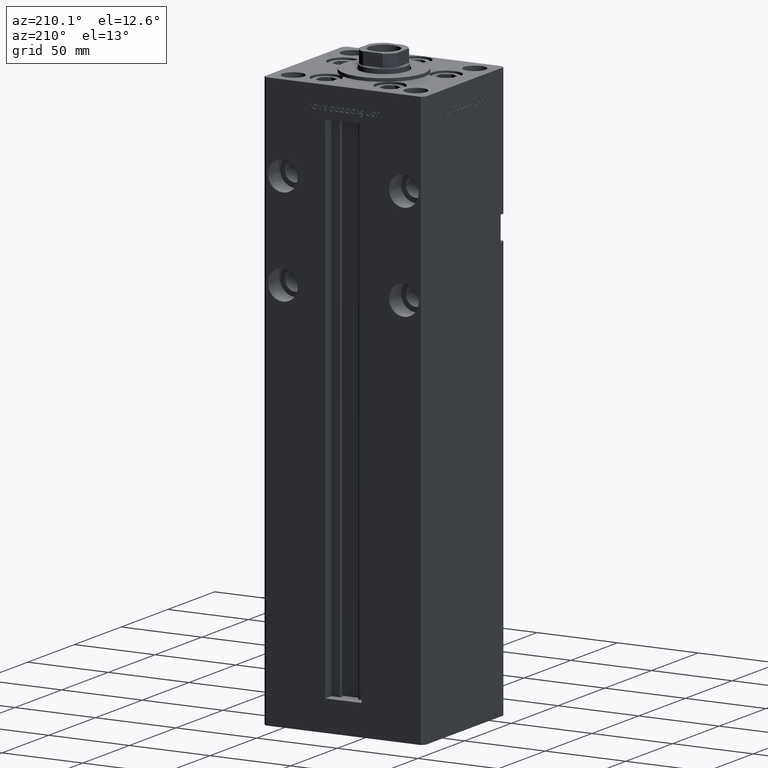
[diagram: clean part render]
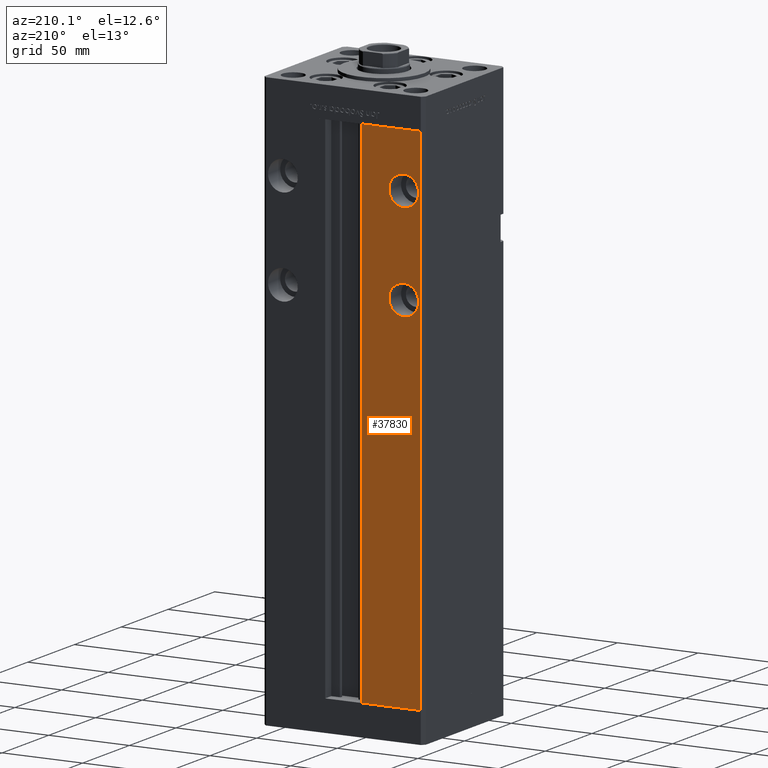
[diagram: same view with one face highlighted and labeled with its STEP entity id]
A machine part, auxiliary view. The second image highlights one B-rep face of the part: STEP entity #37830.
In plain terms, the highlighted planar face has unit normal (0, -1, 0).
Its self-contained STEP definition (entity closure, byte-faithful):
#35 = EDGE_CURVE ( 'NONE', #13581, #28495, #152, .T. ) ;
#152 = LINE ( 'NONE', #4167, #5485 ) ;
#1673 = DIRECTION ( 'NONE',  ( 0.000000000000000000, 1.000000000000000000, 0.000000000000000000 ) ) ;
#2047 = CARTESIAN_POINT ( 'NONE',  ( -37.50000000000000000, 43.50000000000000000, 233.7500000000000000 ) ) ;
#2129 = VECTOR ( 'NONE', #27618, 1000.000000000000000 ) ;
#2725 = PLANE ( 'NONE',  #51195 ) ;
#3520 = EDGE_CURVE ( 'NONE', #13581, #34825, #42387, .T. ) ;
#4167 = CARTESIAN_POINT ( 'NONE',  ( -11.24999999999999645, 43.50000000000000000, 0.000000000000000000 ) ) ;
#4814 = CARTESIAN_POINT ( 'NONE',  ( -48.00000000000000711, 43.50000000000000000, 318.5000000000000000 ) ) ;
#5485 = VECTOR ( 'NONE', #24876, 1000.000000000000000 ) ;
#5971 = CARTESIAN_POINT ( 'NONE',  ( -37.50000000000000000, 43.50000000000000000, 224.5000000000000000 ) ) ;
#6041 = CARTESIAN_POINT ( 'NONE',  ( -37.50000000000000000, 43.50000000000000000, 224.5000000000000000 ) ) ;
#6107 = EDGE_CURVE ( 'NONE', #11502, #34825, #52340, .T. ) ;
#6461 = CARTESIAN_POINT ( 'NONE',  ( -48.00000000000000711, 43.50000000000000000, 0.000000000000000000 ) ) ;
#8050 = VECTOR ( 'NONE', #21992, 1000.000000000000000 ) ;
#8572 = DIRECTION ( 'NONE',  ( 0.000000000000000000, -1.000000000000000000, 0.000000000000000000 ) ) ;
#9663 = EDGE_CURVE ( 'NONE', #16000, #47700, #51981, .T. ) ;
#9811 = CARTESIAN_POINT ( 'NONE',  ( -37.50000000000000000, 43.50000000000000000, 215.2500000000000000 ) ) ;
#10835 = AXIS2_PLACEMENT_3D ( 'NONE', #5971, #1673, #39272 ) ;
#11502 = VERTEX_POINT ( 'NONE', #4814 ) ;
#11730 = VERTEX_POINT ( 'NONE', #50382 ) ;
#13415 = CARTESIAN_POINT ( 'NONE',  ( -37.50000000000000000, 43.50000000000000000, 284.5000000000000000 ) ) ;
#13581 = VERTEX_POINT ( 'NONE', #29894 ) ;
#14197 = EDGE_CURVE ( 'NONE', #47700, #16000, #26381, .T. ) ;
#14335 = AXIS2_PLACEMENT_3D ( 'NONE', #13415, #16641, #33287 ) ;
#14380 = DIRECTION ( 'NONE',  ( 0.000000000000000000, 1.000000000000000000, 0.000000000000000000 ) ) ;
#14939 = DIRECTION ( 'NONE',  ( 0.000000000000000000, 1.000000000000000000, -0.000000000000000000 ) ) ;
#16000 = VERTEX_POINT ( 'NONE', #9811 ) ;
#16632 = FACE_BOUND ( 'NONE', #23539, .T. ) ;
#16641 = DIRECTION ( 'NONE',  ( 0.000000000000000000, 1.000000000000000000, -0.000000000000000000 ) ) ;
#16816 = ORIENTED_EDGE ( 'NONE', *, *, #3520, .T. ) ;
#17071 = VECTOR ( 'NONE', #30243, 1000.000000000000000 ) ;
#17243 = CARTESIAN_POINT ( 'NONE',  ( -37.50000000000000000, 43.50000000000000000, 275.2500000000000000 ) ) ;
#17535 = AXIS2_PLACEMENT_3D ( 'NONE', #22466, #14939, #21951 ) ;
#18402 = ORIENTED_EDGE ( 'NONE', *, *, #6107, .F. ) ;
#20665 = FACE_BOUND ( 'NONE', #52887, .T. ) ;
#21951 = DIRECTION ( 'NONE',  ( 0.000000000000000000, 0.000000000000000000, -1.000000000000000000 ) ) ;
#21992 = DIRECTION ( 'NONE',  ( -1.000000000000000000, 0.000000000000000000, 0.000000000000000000 ) ) ;
#22466 = CARTESIAN_POINT ( 'NONE',  ( -37.50000000000000000, 43.50000000000000000, 284.5000000000000000 ) ) ;
#22981 = AXIS2_PLACEMENT_3D ( 'NONE', #6041, #14380, #26467 ) ;
#23539 = EDGE_LOOP ( 'NONE', ( #35625, #29285 ) ) ;
#23775 = CIRCLE ( 'NONE', #14335, 9.249999999999980460 ) ;
#24319 = EDGE_LOOP ( 'NONE', ( #43641, #33858, #16816, #18402 ) ) ;
#24876 = DIRECTION ( 'NONE',  ( -0.000000000000000000, -0.000000000000000000, 1.000000000000000000 ) ) ;
#24950 = DIRECTION ( 'NONE',  ( 0.000000000000000000, -0.000000000000000000, -1.000000000000000000 ) ) ;
#26381 = CIRCLE ( 'NONE', #22981, 9.250000000000008882 ) ;
#26467 = DIRECTION ( 'NONE',  ( 0.000000000000000000, 0.000000000000000000, 1.000000000000000000 ) ) ;
#27521 = EDGE_CURVE ( 'NONE', #11730, #29311, #40661, .T. ) ;
#27618 = DIRECTION ( 'NONE',  ( -0.000000000000000000, -0.000000000000000000, -1.000000000000000000 ) ) ;
#28495 = VERTEX_POINT ( 'NONE', #49853 ) ;
#29285 = ORIENTED_EDGE ( 'NONE', *, *, #9663, .F. ) ;
#29311 = VERTEX_POINT ( 'NONE', #17243 ) ;
#29894 = CARTESIAN_POINT ( 'NONE',  ( -11.24999999999999645, 43.50000000000000000, 0.000000000000000000 ) ) ;
#30243 = DIRECTION ( 'NONE',  ( 1.000000000000000000, 0.000000000000000000, 0.000000000000000000 ) ) ;
#33004 = FACE_OUTER_BOUND ( 'NONE', #24319, .T. ) ;
#33287 = DIRECTION ( 'NONE',  ( 0.000000000000000000, 0.000000000000000000, -1.000000000000000000 ) ) ;
#33858 = ORIENTED_EDGE ( 'NONE', *, *, #35, .F. ) ;
#34798 = LINE ( 'NONE', #42339, #17071 ) ;
#34825 = VERTEX_POINT ( 'NONE', #6461 ) ;
#35625 = ORIENTED_EDGE ( 'NONE', *, *, #14197, .F. ) ;
#37830 = ADVANCED_FACE ( 'NONE', ( #20665, #16632, #33004 ), #2725, .F. ) ;
#39005 = EDGE_CURVE ( 'NONE', #29311, #11730, #23775, .T. ) ;
#39272 = DIRECTION ( 'NONE',  ( 0.000000000000000000, 0.000000000000000000, 1.000000000000000000 ) ) ;
#40661 = CIRCLE ( 'NONE', #17535, 9.249999999999980460 ) ;
#42339 = CARTESIAN_POINT ( 'NONE',  ( -11.24999999999999645, 43.50000000000000000, 318.5000000000000000 ) ) ;
#42387 = LINE ( 'NONE', #45641, #8050 ) ;
#43641 = ORIENTED_EDGE ( 'NONE', *, *, #48111, .T. ) ;
#44270 = CARTESIAN_POINT ( 'NONE',  ( -48.00000000000000711, 43.50000000000000000, 318.5000000000000000 ) ) ;
#44754 = ORIENTED_EDGE ( 'NONE', *, *, #39005, .F. ) ;
#45382 = CARTESIAN_POINT ( 'NONE',  ( -11.24999999999999645, 43.50000000000000000, 318.5000000000000000 ) ) ;
#45641 = CARTESIAN_POINT ( 'NONE',  ( -11.24999999999999645, 43.50000000000000000, 0.000000000000000000 ) ) ;
#47700 = VERTEX_POINT ( 'NONE', #2047 ) ;
#48111 = EDGE_CURVE ( 'NONE', #11502, #28495, #34798, .T. ) ;
#49598 = ORIENTED_EDGE ( 'NONE', *, *, #27521, .F. ) ;
#49853 = CARTESIAN_POINT ( 'NONE',  ( -11.24999999999999645, 43.50000000000000000, 318.5000000000000000 ) ) ;
#50382 = CARTESIAN_POINT ( 'NONE',  ( -37.50000000000000000, 43.50000000000000000, 293.7499999999999432 ) ) ;
#51195 = AXIS2_PLACEMENT_3D ( 'NONE', #45382, #8572, #24950 ) ;
#51981 = CIRCLE ( 'NONE', #10835, 9.250000000000008882 ) ;
#52340 = LINE ( 'NONE', #44270, #2129 ) ;
#52887 = EDGE_LOOP ( 'NONE', ( #49598, #44754 ) ) ;